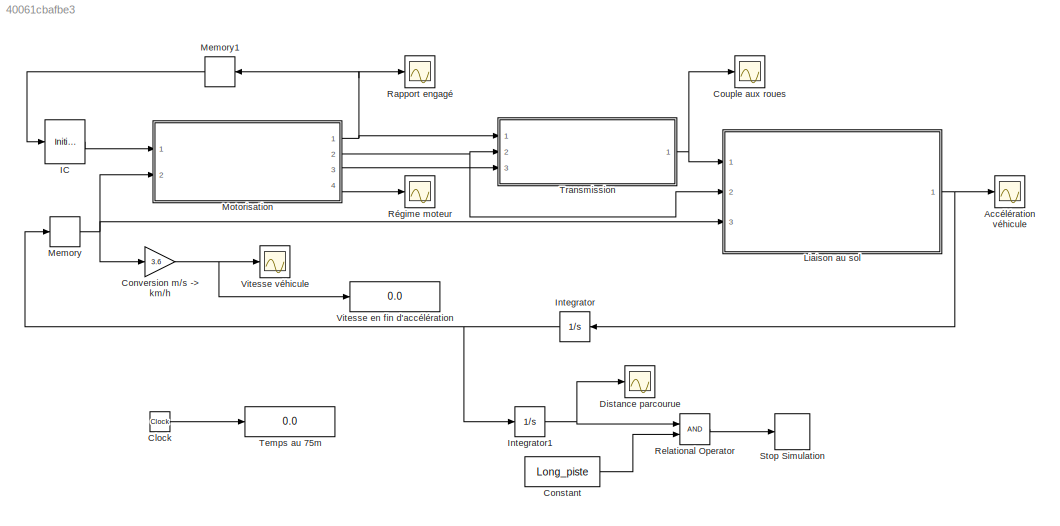
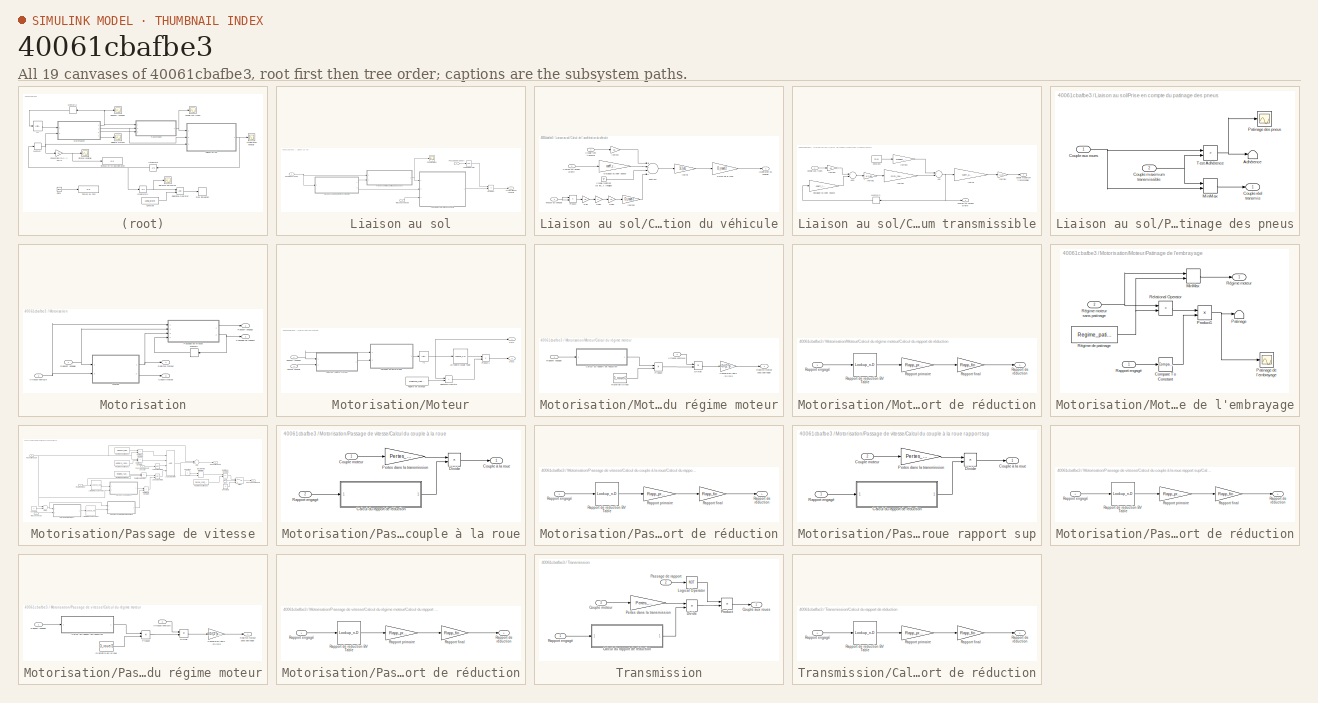
[diagram: thumbnail index - all 19 canvases of the model, root first then tree order]
MODEL slx_40061cbafbe3
KIND model
BLOCK [Scope] Accélération véhicule
  DataFormat = StructureWithTime
  Floating = off
  NumInputPorts = 1
  Ports = [1]
  SampleTime = 0
  ShowLegends = off
  ZoomMode = xonly
BLOCK [Clock] Clock
BLOCK [Constant] Constant
  Value = Long_piste
BLOCK [Gain] Conversion m//s -> km//h
  Gain = 3.6
  OutDataTypeStr = Inherit: Inherit via internal rule
  ParamDataTypeStr = Inherit: Inherit via internal rule
  SaturateOnIntegerOverflow = off
BLOCK [Scope] Couple aux roues
  DataFormat = StructureWithTime
  Floating = off
  NumInputPorts = 1
  Ports = [1]
  SampleTime = 0
  SaveName = ScopeData3
  ShowLegends = off
  TimeRange = 20
  ZoomMode = xonly
BLOCK [Scope] Distance parcourue
  DataFormat = StructureWithTime
  Floating = off
  NumInputPorts = 1
  Ports = [1]
  SampleTime = 0
  SaveName = ScopeData11
  ShowLegends = off
  TimeRange = 20
  ZoomMode = yonly
BLOCK [InitialCondition] IC
  Value = Rapport_init
BLOCK [Integrator] Integrator
  Ports = [1, 1]
BLOCK [Integrator] Integrator1
  Ports = [1, 1]
BLOCK [SubSystem] Liaison au sol
  FunctionWithSeparateData = off
  MaskHideContents = off
  MinAlgLoopOccurrences = off
  Opaque = off
  Ports = [3, 1]
  PropExecContextOutsideSubsystem = off
  RTWSystemCode = Auto
  RequestExecContextInheritance = off
BLOCK [Outport] Liaison au sol/Accélération du véhicule
  IconDisplay = Port number
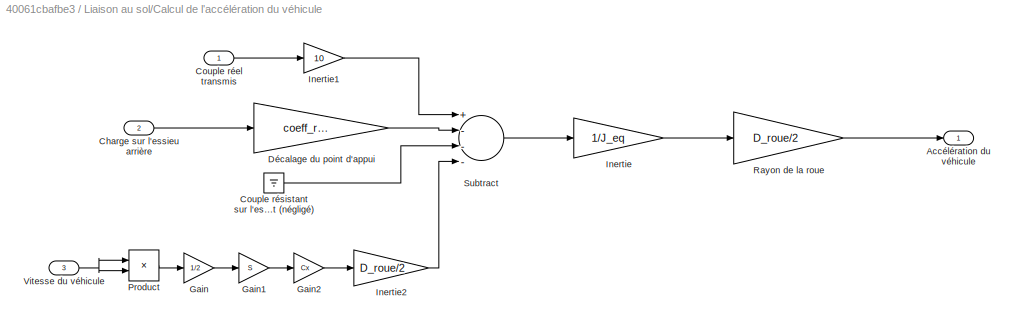
BLOCK [SubSystem] Liaison au sol/Calcul de l'accélération du véhicule
  FunctionWithSeparateData = off
  MaskHideContents = off
  MinAlgLoopOccurrences = off
  Opaque = off
  Ports = [3, 1]
  PropExecContextOutsideSubsystem = off
  RTWSystemCode = Auto
  RequestExecContextInheritance = off
BLOCK [Outport] Liaison au sol/Calcul de l'accélération du véhicule/Accélération du véhicule
  IconDisplay = Port number
BLOCK [Inport] Liaison au sol/Calcul de l'accélération du véhicule/Charge sur l'essieu arrière
  IconDisplay = Port number
  Port = 2
BLOCK [Inport] Liaison au sol/Calcul de l'accélération du véhicule/Couple réel transmis
  IconDisplay = Port number
BLOCK [Ground] Liaison au sol/Calcul de l'accélération du véhicule/Couple résistant sur l'essieu avant (négligé)
BLOCK [Gain] Liaison au sol/Calcul de l'accélération du véhicule/Décalage du point d'appui
  Gain = coeff_roul*2/D_roue
  OutDataTypeStr = Inherit: Inherit via internal rule
  ParamDataTypeStr = Inherit: Inherit via internal rule
  SaturateOnIntegerOverflow = off
BLOCK [Gain] Liaison au sol/Calcul de l'accélération du véhicule/Gain
  Gain = 1/2
  OutDataTypeStr = Inherit: Inherit via internal rule
  ParamDataTypeStr = Inherit: Inherit via internal rule
  SaturateOnIntegerOverflow = off
BLOCK [Gain] Liaison au sol/Calcul de l'accélération du véhicule/Gain1
  Gain = S
  OutDataTypeStr = Inherit: Inherit via internal rule
  ParamDataTypeStr = Inherit: Inherit via internal rule
  SaturateOnIntegerOverflow = off
BLOCK [Gain] Liaison au sol/Calcul de l'accélération du véhicule/Gain2
  Gain = Cx
  OutDataTypeStr = Inherit: Inherit via internal rule
  ParamDataTypeStr = Inherit: Inherit via internal rule
  SaturateOnIntegerOverflow = off
BLOCK [Gain] Liaison au sol/Calcul de l'accélération du véhicule/Inertie
  Gain = 1/J_eq
  OutDataTypeStr = Inherit: Inherit via internal rule
  ParamDataTypeStr = Inherit: Inherit via internal rule
  SaturateOnIntegerOverflow = off
BLOCK [Gain] Liaison au sol/Calcul de l'accélération du véhicule/Inertie1
  Gain = 10
  OutDataTypeStr = Inherit: Inherit via internal rule
  ParamDataTypeStr = Inherit: Inherit via internal rule
  SaturateOnIntegerOverflow = off
BLOCK [Gain] Liaison au sol/Calcul de l'accélération du véhicule/Inertie2
  Gain = D_roue/2
  OutDataTypeStr = Inherit: Inherit via internal rule
  ParamDataTypeStr = Inherit: Inherit via internal rule
  SaturateOnIntegerOverflow = off
BLOCK [Product] Liaison au sol/Calcul de l'accélération du véhicule/Product
  InputSameDT = off
  OutDataTypeStr = Inherit: Inherit via internal rule
  Ports = [2, 1]
  RndMeth = Floor
  SaturateOnIntegerOverflow = off
BLOCK [Gain] Liaison au sol/Calcul de l'accélération du véhicule/Rayon de la roue
  Gain = D_roue/2
  OutDataTypeStr = Inherit: Inherit via internal rule
  ParamDataTypeStr = Inherit: Inherit via internal rule
  SaturateOnIntegerOverflow = off
BLOCK [Sum] Liaison au sol/Calcul de l'accélération du véhicule/Subtract
  InputSameDT = off
  Inputs = +---
  OutDataTypeStr = Inherit: Inherit via internal rule
  Ports = [4, 1]
  SaturateOnIntegerOverflow = off
BLOCK [Inport] Liaison au sol/Calcul de l'accélération du véhicule/Vitesse du véhicule
  IconDisplay = Port number
  Port = 3
BLOCK [SubSystem] Liaison au sol/Calcul du couple maximum transmissible
  FunctionWithSeparateData = off
  MaskHideContents = off
  MinAlgLoopOccurrences = off
  Opaque = off
  Ports = [1, 2]
  PropExecContextOutsideSubsystem = off
  RTWSystemCode = Auto
  RequestExecContextInheritance = off
BLOCK [Sum] Liaison au sol/Calcul du couple maximum transmissible/Add
  InputSameDT = off
  OutDataTypeStr = Inherit: Inherit via internal rule
  Ports = [2, 1]
  SaturateOnIntegerOverflow = off
BLOCK [Sum] Liaison au sol/Calcul du couple maximum transmissible/Add1
  InputSameDT = off
  Inputs = +-
  OutDataTypeStr = Inherit: Inherit via internal rule
  Ports = [2, 1]
  SaturateOnIntegerOverflow = off
BLOCK [Outport] Liaison au sol/Calcul du couple maximum transmissible/Charge sur l'essieu arrière
  IconDisplay = Port number
  Port = 2
BLOCK [Constant] Liaison au sol/Calcul du couple maximum transmissible/Constant
  Value = m*g
BLOCK [Inport] Liaison au sol/Calcul du couple maximum transmissible/Couple aux roues
  IconDisplay = Port number
BLOCK [Outport] Liaison au sol/Calcul du couple maximum transmissible/Couple maximum transmissible
  IconDisplay = Port number
BLOCK [Gain] Liaison au sol/Calcul du couple maximum transmissible/Décalage du point d'appui
  Gain = coeff_roul*2/D_roue
  OutDataTypeStr = Inherit: Inherit via internal rule
  ParamDataTypeStr = Inherit: Inherit via internal rule
  SaturateOnIntegerOverflow = off
BLOCK [Gain] Liaison au sol/Calcul du couple maximum transmissible/Inertie
  Gain = coeff_adh*D_roue/2
  OutDataTypeStr = Inherit: Inherit via internal rule
  ParamDataTypeStr = Inherit: Inherit via internal rule
  SaturateOnIntegerOverflow = off
BLOCK [Gain] Liaison au sol/Calcul du couple maximum transmissible/Inertie1
  Gain = m*D_roue/2*z_g/Empatt
  OutDataTypeStr = Inherit: Inherit via internal rule
  ParamDataTypeStr = Inherit: Inherit via internal rule
  SaturateOnIntegerOverflow = off
BLOCK [Gain] Liaison au sol/Calcul du couple maximum transmissible/Inertie2
  Gain = 1/J_eq
  OutDataTypeStr = Inherit: Inherit via internal rule
  ParamDataTypeStr = Inherit: Inherit via internal rule
  SaturateOnIntegerOverflow = off
BLOCK [Gain] Liaison au sol/Calcul du couple maximum transmissible/Inertie3
  Gain = Repart_arriere
  OutDataTypeStr = Inherit: Inherit via internal rule
  ParamDataTypeStr = Inherit: Inherit via internal rule
  SaturateOnIntegerOverflow = off
BLOCK [Gain] Liaison au sol/Calcul du couple maximum transmissible/Inertie4
  Gain = 1/10
  OutDataTypeStr = Inherit: Inherit via internal rule
  ParamDataTypeStr = Inherit: Inherit via internal rule
  SaturateOnIntegerOverflow = off
BLOCK [Gain] Liaison au sol/Calcul du couple maximum transmissible/Inertie5
  Gain = 10
  OutDataTypeStr = Inherit: Inherit via internal rule
  ParamDataTypeStr = Inherit: Inherit via internal rule
  SaturateOnIntegerOverflow = off
BLOCK [Memory] Liaison au sol/Calcul du couple maximum transmissible/Memory1
BLOCK [Inport] Liaison au sol/Couple aux roues
  IconDisplay = Port number
BLOCK [Scope] Liaison au sol/Couple moteur
  DataFormat = StructureWithTime
  Floating = off
  NumInputPorts = 1
  Ports = [1]
  SampleTime = 0
  SaveName = ScopeData1
  ShowLegends = off
  TimeRange = 20
  ZoomMode = yonly
BLOCK [Logic] Liaison au sol/Logical Operator
  AllPortsSameDT = off
  Operator = NOT
  OutDataTypeStr = boolean
  Ports = [1, 1]
BLOCK [Inport] Liaison au sol/Passage de rapport
  IconDisplay = Port number
  Port = 2
BLOCK [SubSystem] Liaison au sol/Prise en compte du patinage des pneus
  FunctionWithSeparateData = off
  MaskHideContents = off
  MinAlgLoopOccurrences = off
  Opaque = off
  Ports = [2, 1]
  PropExecContextOutsideSubsystem = off
  RTWSystemCode = Auto
  RequestExecContextInheritance = off
BLOCK [Terminator] Liaison au sol/Prise en compte du patinage des pneus/Adhérence
BLOCK [Inport] Liaison au sol/Prise en compte du patinage des pneus/Couple aux roues
  IconDisplay = Port number
BLOCK [Inport] Liaison au sol/Prise en compte du patinage des pneus/Couple maximum transmissible
  IconDisplay = Port number
  Port = 2
BLOCK [Outport] Liaison au sol/Prise en compte du patinage des pneus/Couple réel transmis
  IconDisplay = Port number
BLOCK [MinMax] Liaison au sol/Prise en compte du patinage des pneus/MinMax
  InputSameDT = off
  Inputs = 2
  Ports = [2, 1]
  SaturateOnIntegerOverflow = off
BLOCK [Scope] Liaison au sol/Prise en compte du patinage des pneus/Patinage des pneus
  DataFormat = StructureWithTime
  Floating = off
  NumInputPorts = 1
  Ports = [1]
  SampleTime = 0
  SaveName = ScopeData4
  ShowLegends = off
  TimeRange = 20
  ZoomMode = xonly
BLOCK [RelationalOperator] Liaison au sol/Prise en compte du patinage des pneus/Test Adhérence
  InputSameDT = off
  Operator = >
  OutDataTypeStr = boolean
  Ports = [2, 1]
BLOCK [Product] Liaison au sol/Product
  InputSameDT = off
  OutDataTypeStr = Inherit: Inherit via internal rule
  Ports = [2, 1]
  RndMeth = Floor
  SaturateOnIntegerOverflow = off
BLOCK [Inport] Liaison au sol/Vitesse du véhicule
  IconDisplay = Port number
  Port = 3
BLOCK [Memory] Memory
BLOCK [Memory] Memory1
BLOCK [SubSystem] Motorisation
  FunctionWithSeparateData = off
  MaskHideContents = off
  MinAlgLoopOccurrences = off
  Opaque = off
  Ports = [2, 4]
  PropExecContextOutsideSubsystem = off
  RTWSystemCode = Auto
  RequestExecContextInheritance = off
BLOCK [Outport] Motorisation/Couple moteur
  IconDisplay = Port number
  Port = 3
BLOCK [Memory] Motorisation/Memory
BLOCK [SubSystem] Motorisation/Moteur
  FunctionWithSeparateData = off
  MaskHideContents = off
  MinAlgLoopOccurrences = off
  Opaque = off
  Ports = [2, 2]
  PropExecContextOutsideSubsystem = off
  RTWSystemCode = Auto
  RequestExecContextInheritance = off
BLOCK [SubSystem] Motorisation/Moteur/Calcul du régime moteur
  FunctionWithSeparateData = off
  MaskHideContents = off
  MinAlgLoopOccurrences = off
  Opaque = off
  Ports = [2, 1]
  PropExecContextOutsideSubsystem = off
  RTWSystemCode = Auto
  RequestExecContextInheritance = off
BLOCK [SubSystem] Motorisation/Moteur/Calcul du régime moteur/Calcul du rapport de réduction
  FunctionWithSeparateData = off
  MaskHideContents = off
  MinAlgLoopOccurrences = off
  Opaque = off
  Ports = [1, 1]
  PropExecContextOutsideSubsystem = off
  RTWSystemCode = Auto
  RequestExecContextInheritance = off
BLOCK [Lookup_n-D] Motorisation/Moteur/Calcul du régime moteur/Calcul du rapport de réduction/Rapport de reduction BV Table
  BreakpointsForDimension1 = Rapp_engage
  NumberOfTableDimensions = 1
  Ports = [1, 1]
  RndMeth = Simplest
  Table = Rapp_reduc
BLOCK [Outport] Motorisation/Moteur/Calcul du régime moteur/Calcul du rapport de réduction/Rapport de réduction
  IconDisplay = Port number
BLOCK [Inport] Motorisation/Moteur/Calcul du régime moteur/Calcul du rapport de réduction/Rapport engagé
  IconDisplay = Port number
BLOCK [Gain] Motorisation/Moteur/Calcul du régime moteur/Calcul du rapport de réduction/Rapport final
  Gain = Rapp_fin
  OutDataTypeStr = Inherit: Inherit via internal rule
  ParamDataTypeStr = Inherit: Inherit via internal rule
  SaturateOnIntegerOverflow = off
BLOCK [Gain] Motorisation/Moteur/Calcul du régime moteur/Calcul du rapport de réduction/Rapport primaire
  Gain = Rapp_prim
  OutDataTypeStr = Inherit: Inherit via internal rule
  ParamDataTypeStr = Inherit: Inherit via internal rule
  SaturateOnIntegerOverflow = off
BLOCK [Gain] Motorisation/Moteur/Calcul du régime moteur/Conversion rad//s ->tr//min
  Gain = 60/(2*pi)
  OutDataTypeStr = Inherit: Inherit via internal rule
  ParamDataTypeStr = Inherit: Inherit via internal rule
  SaturateOnIntegerOverflow = off
BLOCK [Product] Motorisation/Moteur/Calcul du régime moteur/Divide
  InputSameDT = off
  Inputs = */
  OutDataTypeStr = Inherit: Inherit via internal rule
  Ports = [2, 1]
  RndMeth = Floor
  SaturateOnIntegerOverflow = off
BLOCK [Product] Motorisation/Moteur/Calcul du régime moteur/Product
  InputSameDT = off
  OutDataTypeStr = Inherit: Inherit via internal rule
  Ports = [2, 1]
  RndMeth = Floor
  SaturateOnIntegerOverflow = off
BLOCK [Inport] Motorisation/Moteur/Calcul du régime moteur/Rapport engagé
  IconDisplay = Port number
BLOCK [Constant] Motorisation/Moteur/Calcul du régime moteur/Rayon de la roue
  Value = D_roue/2
BLOCK [Outport] Motorisation/Moteur/Calcul du régime moteur/Régime moteur sans patinage
  IconDisplay = Port number
BLOCK [Inport] Motorisation/Moteur/Calcul du régime moteur/Vitesse véhicule
  IconDisplay = Port number
  Port = 2
BLOCK [InitialCondition] Motorisation/Moteur/IC
  Value = Regime_init
BLOCK [Lookup_n-D] Motorisation/Moteur/Loi regime//couple Table
  BreakpointsForDimension1 = Regime_moteur
  NumberOfTableDimensions = 1
  Ports = [1, 1]
  RndMeth = Simplest
  Table = Couple_moteur
BLOCK [Outport] Motorisation/Moteur/Out1
  IconDisplay = Port number
BLOCK [Outport] Motorisation/Moteur/Out2
  IconDisplay = Port number
  Port = 2
BLOCK [SubSystem] Motorisation/Moteur/Patinage de l'embrayage
  FunctionWithSeparateData = off
  MaskHideContents = off
  MinAlgLoopOccurrences = off
  Opaque = off
  Ports = [2, 1]
  PropExecContextOutsideSubsystem = off
  RTWSystemCode = Auto
  RequestExecContextInheritance = off
BLOCK [Reference] Motorisation/Moteur/Patinage de l'embrayage/Compare To Constant  REF=simulink/Logic and Bit
Operations/Compare
To Constant
  OutDataTypeStr = boolean
  Ports = [1, 1]
  SourceBlock = simulink/Logic and Bit\nOperations/Compare\nTo Constant
  SourceType = Compare To Constant
  ZeroCross = on
  const = 1
  relop = ==
BLOCK [MinMax] Motorisation/Moteur/Patinage de l'embrayage/MinMax
  Function = max
  InputSameDT = off
  Inputs = 2
  Ports = [2, 1]
  SaturateOnIntegerOverflow = off
BLOCK [Terminator] Motorisation/Moteur/Patinage de l'embrayage/Patinage
BLOCK [Scope] Motorisation/Moteur/Patinage de l'embrayage/Patinage de l'embrayage
  DataFormat = StructureWithTime
  Floating = off
  NumInputPorts = 1
  Ports = [1]
  SampleTime = 0
  SaveName = ScopeData5
  ShowLegends = off
  ZoomMode = xonly
BLOCK [Product] Motorisation/Moteur/Patinage de l'embrayage/Product1
  InputSameDT = off
  OutDataTypeStr = Inherit: Inherit via internal rule
  Ports = [2, 1]
  RndMeth = Floor
  SaturateOnIntegerOverflow = off
BLOCK [Inport] Motorisation/Moteur/Patinage de l'embrayage/Rapport engagé
  IconDisplay = Port number
BLOCK [RelationalOperator] Motorisation/Moteur/Patinage de l'embrayage/Relational Operator
  InputSameDT = off
  Operator = <
  OutDataTypeStr = boolean
  Ports = [2, 1]
BLOCK [Constant] Motorisation/Moteur/Patinage de l'embrayage/Régime de patinage
  Value = Regime_patinage
BLOCK [Outport] Motorisation/Moteur/Patinage de l'embrayage/Régime moteur
  IconDisplay = Port number
BLOCK [Inport] Motorisation/Moteur/Patinage de l'embrayage/Régime moteur sans patinage
  IconDisplay = Port number
  Port = 2
BLOCK [Product] Motorisation/Moteur/Product1
  InputSameDT = off
  OutDataTypeStr = Inherit: Inherit via internal rule
  Ports = [2, 1]
  RndMeth = Floor
  SaturateOnIntegerOverflow = off
BLOCK [Inport] Motorisation/Moteur/Rapport engagé
  IconDisplay = Port number
BLOCK [RelationalOperator] Motorisation/Moteur/Relational Operator
  InputSameDT = off
  Operator = <
  OutDataTypeStr = boolean
  Ports = [2, 1]
BLOCK [Constant] Motorisation/Moteur/Régime de patinage
  Value = Regime_rupteur
BLOCK [Inport] Motorisation/Moteur/Vitesse véhicule
  IconDisplay = Port number
  Port = 2
BLOCK [Outport] Motorisation/Passage de rapport
  IconDisplay = Port number
  Port = 2
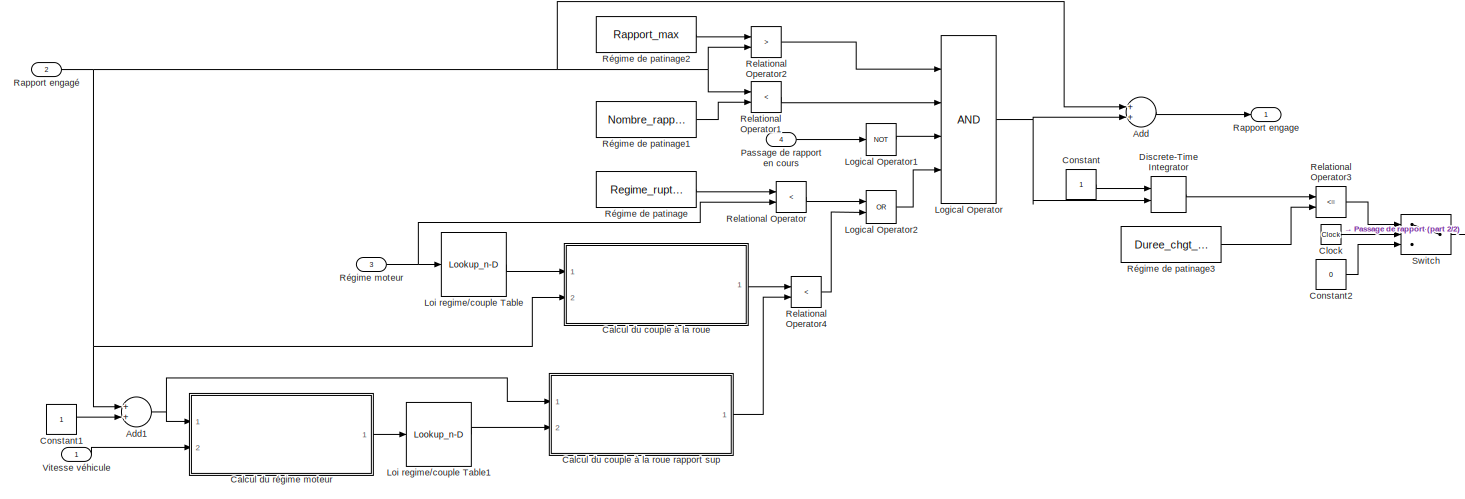
[diagram: Motorisation/Passage de vitesse - part 1/2, most of the canvas]
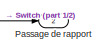
[diagram: Motorisation/Passage de vitesse - part 2/2, middle right region]
BLOCK [SubSystem] Motorisation/Passage de vitesse
  FunctionWithSeparateData = off
  MaskHideContents = off
  MinAlgLoopOccurrences = off
  Opaque = off
  Ports = [4, 2]
  PropExecContextOutsideSubsystem = off
  RTWSystemCode = Auto
  RequestExecContextInheritance = off
BLOCK [Sum] Motorisation/Passage de vitesse/Add
  InputSameDT = off
  OutDataTypeStr = Inherit: Inherit via internal rule
  Ports = [2, 1]
  SaturateOnIntegerOverflow = off
BLOCK [Sum] Motorisation/Passage de vitesse/Add1
  InputSameDT = off
  OutDataTypeStr = Inherit: Inherit via internal rule
  Ports = [2, 1]
  SaturateOnIntegerOverflow = off
BLOCK [SubSystem] Motorisation/Passage de vitesse/Calcul du couple à la roue
  FunctionWithSeparateData = off
  MaskHideContents = off
  MinAlgLoopOccurrences = off
  Opaque = off
  Ports = [2, 1]
  PropExecContextOutsideSubsystem = off
  RTWSystemCode = Auto
  RequestExecContextInheritance = off
BLOCK [SubSystem] Motorisation/Passage de vitesse/Calcul du couple à la roue rapport sup
  FunctionWithSeparateData = off
  MaskHideContents = off
  MinAlgLoopOccurrences = off
  Opaque = off
  Ports = [2, 1]
  PropExecContextOutsideSubsystem = off
  RTWSystemCode = Auto
  RequestExecContextInheritance = off
BLOCK [SubSystem] Motorisation/Passage de vitesse/Calcul du couple à la roue rapport sup/Calcul du rapport de réduction
  FunctionWithSeparateData = off
  MaskHideContents = off
  MinAlgLoopOccurrences = off
  Opaque = off
  Ports = [1, 1]
  PropExecContextOutsideSubsystem = off
  RTWSystemCode = Auto
  RequestExecContextInheritance = off
BLOCK [Lookup_n-D] Motorisation/Passage de vitesse/Calcul du couple à la roue rapport sup/Calcul du rapport de réduction/Rapport de reduction BV Table
  BreakpointsForDimension1 = Rapp_engage
  NumberOfTableDimensions = 1
  Ports = [1, 1]
  RndMeth = Simplest
  Table = Rapp_reduc
BLOCK [Outport] Motorisation/Passage de vitesse/Calcul du couple à la roue rapport sup/Calcul du rapport de réduction/Rapport de réduction
  IconDisplay = Port number
BLOCK [Inport] Motorisation/Passage de vitesse/Calcul du couple à la roue rapport sup/Calcul du rapport de réduction/Rapport engagé
  IconDisplay = Port number
BLOCK [Gain] Motorisation/Passage de vitesse/Calcul du couple à la roue rapport sup/Calcul du rapport de réduction/Rapport final
  Gain = Rapp_fin
  OutDataTypeStr = Inherit: Inherit via internal rule
  ParamDataTypeStr = Inherit: Inherit via internal rule
  SaturateOnIntegerOverflow = off
BLOCK [Gain] Motorisation/Passage de vitesse/Calcul du couple à la roue rapport sup/Calcul du rapport de réduction/Rapport primaire
  Gain = Rapp_prim
  OutDataTypeStr = Inherit: Inherit via internal rule
  ParamDataTypeStr = Inherit: Inherit via internal rule
  SaturateOnIntegerOverflow = off
BLOCK [Inport] Motorisation/Passage de vitesse/Calcul du couple à la roue rapport sup/Couple moteur
  IconDisplay = Port number
  Port = 2
BLOCK [Outport] Motorisation/Passage de vitesse/Calcul du couple à la roue rapport sup/Couple à la roue
  IconDisplay = Port number
BLOCK [Product] Motorisation/Passage de vitesse/Calcul du couple à la roue rapport sup/Divide
  InputSameDT = off
  Inputs = */
  OutDataTypeStr = Inherit: Inherit via internal rule
  Ports = [2, 1]
  RndMeth = Floor
  SaturateOnIntegerOverflow = off
BLOCK [Gain] Motorisation/Passage de vitesse/Calcul du couple à la roue rapport sup/Pertes dans la transmission
  Gain = Pertes_trans
  OutDataTypeStr = Inherit: Inherit via internal rule
  ParamDataTypeStr = Inherit: Inherit via internal rule
  SaturateOnIntegerOverflow = off
BLOCK [Inport] Motorisation/Passage de vitesse/Calcul du couple à la roue rapport sup/Rapport engagé
  IconDisplay = Port number
BLOCK [SubSystem] Motorisation/Passage de vitesse/Calcul du couple à la roue/Calcul du rapport de réduction
  FunctionWithSeparateData = off
  MaskHideContents = off
  MinAlgLoopOccurrences = off
  Opaque = off
  Ports = [1, 1]
  PropExecContextOutsideSubsystem = off
  RTWSystemCode = Auto
  RequestExecContextInheritance = off
BLOCK [Lookup_n-D] Motorisation/Passage de vitesse/Calcul du couple à la roue/Calcul du rapport de réduction/Rapport de reduction BV Table
  BreakpointsForDimension1 = Rapp_engage
  NumberOfTableDimensions = 1
  Ports = [1, 1]
  RndMeth = Simplest
  Table = Rapp_reduc
BLOCK [Outport] Motorisation/Passage de vitesse/Calcul du couple à la roue/Calcul du rapport de réduction/Rapport de réduction
  IconDisplay = Port number
BLOCK [Inport] Motorisation/Passage de vitesse/Calcul du couple à la roue/Calcul du rapport de réduction/Rapport engagé
  IconDisplay = Port number
BLOCK [Gain] Motorisation/Passage de vitesse/Calcul du couple à la roue/Calcul du rapport de réduction/Rapport final
  Gain = Rapp_fin
  OutDataTypeStr = Inherit: Inherit via internal rule
  ParamDataTypeStr = Inherit: Inherit via internal rule
  SaturateOnIntegerOverflow = off
BLOCK [Gain] Motorisation/Passage de vitesse/Calcul du couple à la roue/Calcul du rapport de réduction/Rapport primaire
  Gain = Rapp_prim
  OutDataTypeStr = Inherit: Inherit via internal rule
  ParamDataTypeStr = Inherit: Inherit via internal rule
  SaturateOnIntegerOverflow = off
BLOCK [Inport] Motorisation/Passage de vitesse/Calcul du couple à la roue/Couple moteur
  IconDisplay = Port number
BLOCK [Outport] Motorisation/Passage de vitesse/Calcul du couple à la roue/Couple à la roue
  IconDisplay = Port number
BLOCK [Product] Motorisation/Passage de vitesse/Calcul du couple à la roue/Divide
  InputSameDT = off
  Inputs = */
  OutDataTypeStr = Inherit: Inherit via internal rule
  Ports = [2, 1]
  RndMeth = Floor
  SaturateOnIntegerOverflow = off
BLOCK [Gain] Motorisation/Passage de vitesse/Calcul du couple à la roue/Pertes dans la transmission
  Gain = Pertes_trans
  OutDataTypeStr = Inherit: Inherit via internal rule
  ParamDataTypeStr = Inherit: Inherit via internal rule
  SaturateOnIntegerOverflow = off
BLOCK [Inport] Motorisation/Passage de vitesse/Calcul du couple à la roue/Rapport engagé
  IconDisplay = Port number
  Port = 2
BLOCK [SubSystem] Motorisation/Passage de vitesse/Calcul du régime moteur
  FunctionWithSeparateData = off
  MaskHideContents = off
  MinAlgLoopOccurrences = off
  Opaque = off
  Ports = [2, 1]
  PropExecContextOutsideSubsystem = off
  RTWSystemCode = Auto
  RequestExecContextInheritance = off
BLOCK [SubSystem] Motorisation/Passage de vitesse/Calcul du régime moteur/Calcul du rapport de réduction
  FunctionWithSeparateData = off
  MaskHideContents = off
  MinAlgLoopOccurrences = off
  Opaque = off
  Ports = [1, 1]
  PropExecContextOutsideSubsystem = off
  RTWSystemCode = Auto
  RequestExecContextInheritance = off
BLOCK [Lookup_n-D] Motorisation/Passage de vitesse/Calcul du régime moteur/Calcul du rapport de réduction/Rapport de reduction BV Table
  BreakpointsForDimension1 = Rapp_engage
  NumberOfTableDimensions = 1
  Ports = [1, 1]
  RndMeth = Simplest
  Table = Rapp_reduc
BLOCK [Outport] Motorisation/Passage de vitesse/Calcul du régime moteur/Calcul du rapport de réduction/Rapport de réduction
  IconDisplay = Port number
BLOCK [Inport] Motorisation/Passage de vitesse/Calcul du régime moteur/Calcul du rapport de réduction/Rapport engagé
  IconDisplay = Port number
BLOCK [Gain] Motorisation/Passage de vitesse/Calcul du régime moteur/Calcul du rapport de réduction/Rapport final
  Gain = Rapp_fin
  OutDataTypeStr = Inherit: Inherit via internal rule
  ParamDataTypeStr = Inherit: Inherit via internal rule
  SaturateOnIntegerOverflow = off
BLOCK [Gain] Motorisation/Passage de vitesse/Calcul du régime moteur/Calcul du rapport de réduction/Rapport primaire
  Gain = Rapp_prim
  OutDataTypeStr = Inherit: Inherit via internal rule
  ParamDataTypeStr = Inherit: Inherit via internal rule
  SaturateOnIntegerOverflow = off
BLOCK [Gain] Motorisation/Passage de vitesse/Calcul du régime moteur/Conversion rad//s ->tr//min
  Gain = 60/(2*pi)
  OutDataTypeStr = Inherit: Inherit via internal rule
  ParamDataTypeStr = Inherit: Inherit via internal rule
  SaturateOnIntegerOverflow = off
BLOCK [Constant] Motorisation/Passage de vitesse/Calcul du régime moteur/Diamètre de la roue
  Value = D_roue/2
BLOCK [Product] Motorisation/Passage de vitesse/Calcul du régime moteur/Divide
  InputSameDT = off
  Inputs = */
  OutDataTypeStr = Inherit: Inherit via internal rule
  Ports = [2, 1]
  RndMeth = Floor
  SaturateOnIntegerOverflow = off
BLOCK [Product] Motorisation/Passage de vitesse/Calcul du régime moteur/Product
  InputSameDT = off
  OutDataTypeStr = Inherit: Inherit via internal rule
  Ports = [2, 1]
  RndMeth = Floor
  SaturateOnIntegerOverflow = off
BLOCK [Inport] Motorisation/Passage de vitesse/Calcul du régime moteur/Rapport engagé
  IconDisplay = Port number
BLOCK [Outport] Motorisation/Passage de vitesse/Calcul du régime moteur/Régime moteur sans patinage
  IconDisplay = Port number
BLOCK [Inport] Motorisation/Passage de vitesse/Calcul du régime moteur/Vitesse véhicule
  IconDisplay = Port number
  Port = 2
BLOCK [Clock] Motorisation/Passage de vitesse/Clock
BLOCK [Constant] Motorisation/Passage de vitesse/Constant
BLOCK [Constant] Motorisation/Passage de vitesse/Constant1
BLOCK [Constant] Motorisation/Passage de vitesse/Constant2
  Value = 0
BLOCK [DiscreteIntegrator] Motorisation/Passage de vitesse/Discrete-Time Integrator
  ExternalReset = rising
  ICPrevOutput = DiscIntNeverNeededParam
  ICPrevScaledInput = DiscIntNeverNeededParam
  Ports = [2, 1]
  SampleTime = -1
BLOCK [Logic] Motorisation/Passage de vitesse/Logical Operator
  AllPortsSameDT = off
  Inputs = 4
  OutDataTypeStr = boolean
  Ports = [4, 1]
BLOCK [Logic] Motorisation/Passage de vitesse/Logical Operator1
  AllPortsSameDT = off
  Operator = NOT
  OutDataTypeStr = boolean
  Ports = [1, 1]
BLOCK [Logic] Motorisation/Passage de vitesse/Logical Operator2
  AllPortsSameDT = off
  Operator = OR
  OutDataTypeStr = boolean
  Ports = [2, 1]
BLOCK [Lookup_n-D] Motorisation/Passage de vitesse/Loi regime//couple Table
  BreakpointsForDimension1 = Regime_moteur
  NumberOfTableDimensions = 1
  Ports = [1, 1]
  RndMeth = Simplest
  Table = Couple_moteur
BLOCK [Lookup_n-D] Motorisation/Passage de vitesse/Loi regime//couple Table1
  BreakpointsForDimension1 = Regime_moteur
  NumberOfTableDimensions = 1
  Ports = [1, 1]
  RndMeth = Simplest
  Table = Couple_moteur
BLOCK [Outport] Motorisation/Passage de vitesse/Passage de rapport
  IconDisplay = Port number
  Port = 2
BLOCK [Inport] Motorisation/Passage de vitesse/Passage de rapport en cours
  IconDisplay = Port number
  Port = 4
BLOCK [Outport] Motorisation/Passage de vitesse/Rapport engage
  IconDisplay = Port number
BLOCK [Inport] Motorisation/Passage de vitesse/Rapport engagé
  IconDisplay = Port number
  Port = 2
BLOCK [RelationalOperator] Motorisation/Passage de vitesse/Relational Operator
  InputSameDT = off
  Operator = <
  OutDataTypeStr = boolean
  Ports = [2, 1]
BLOCK [RelationalOperator] Motorisation/Passage de vitesse/Relational Operator1
  InputSameDT = off
  Operator = <
  OutDataTypeStr = boolean
  Ports = [2, 1]
BLOCK [RelationalOperator] Motorisation/Passage de vitesse/Relational Operator2
  InputSameDT = off
  Operator = >
  OutDataTypeStr = boolean
  Ports = [2, 1]
BLOCK [RelationalOperator] Motorisation/Passage de vitesse/Relational Operator3
  InputSameDT = off
  Operator = <=
  OutDataTypeStr = boolean
  Ports = [2, 1]
BLOCK [RelationalOperator] Motorisation/Passage de vitesse/Relational Operator4
  InputSameDT = off
  Operator = <
  OutDataTypeStr = boolean
  Ports = [2, 1]
BLOCK [Constant] Motorisation/Passage de vitesse/Régime de patinage
  Value = Regime_rupteur
BLOCK [Constant] Motorisation/Passage de vitesse/Régime de patinage1
  Value = Nombre_rapport
BLOCK [Constant] Motorisation/Passage de vitesse/Régime de patinage2
  Value = Rapport_max
BLOCK [Constant] Motorisation/Passage de vitesse/Régime de patinage3
  Value = Duree_chgt_rapport
BLOCK [Inport] Motorisation/Passage de vitesse/Régime moteur
  IconDisplay = Port number
  Port = 3
BLOCK [Switch] Motorisation/Passage de vitesse/Switch
  InputSameDT = off
  SaturateOnIntegerOverflow = off
  Threshold = 0.2
BLOCK [Inport] Motorisation/Passage de vitesse/Vitesse véhicule
  IconDisplay = Port number
BLOCK [Outport] Motorisation/Rapport engage
  IconDisplay = Port number
BLOCK [Inport] Motorisation/Rapport engagé
  IconDisplay = Port number
BLOCK [Outport] Motorisation/Régime moteur
  IconDisplay = Port number
  Port = 4
BLOCK [Inport] Motorisation/Vitesse véhicule
  IconDisplay = Port number
  Port = 2
BLOCK [Scope] Rapport engagé
  DataFormat = StructureWithTime
  Floating = off
  NumInputPorts = 1
  Ports = [1]
  SampleTime = 0
  SaveName = ScopeData6
  ShowLegends = off
  ZoomMode = xonly
BLOCK [RelationalOperator] Relational Operator
  InputSameDT = off
  OutDataTypeStr = boolean
  Ports = [2, 1]
BLOCK [Scope] Régime moteur
  DataFormat = StructureWithTime
  Floating = off
  NumInputPorts = 1
  Ports = [1]
  SampleTime = 0
  SaveName = ScopeData9
  ShowLegends = off
  TimeRange = 20
  ZoomMode = yonly
BLOCK [Stop] Stop Simulation
BLOCK [Display] Temps au 75m
  Decimation = 1
  Lockdown = off
  Ports = [1]
BLOCK [SubSystem] Transmission
  FunctionWithSeparateData = off
  MaskHideContents = off
  MinAlgLoopOccurrences = off
  Opaque = off
  Ports = [3, 1]
  PropExecContextOutsideSubsystem = off
  RTWSystemCode = Auto
  RequestExecContextInheritance = off
BLOCK [SubSystem] Transmission/Calcul du rapport de réduction
  FunctionWithSeparateData = off
  MaskHideContents = off
  MinAlgLoopOccurrences = off
  Opaque = off
  Ports = [1, 1]
  PropExecContextOutsideSubsystem = off
  RTWSystemCode = Auto
  RequestExecContextInheritance = off
BLOCK [Lookup_n-D] Transmission/Calcul du rapport de réduction/Rapport de reduction BV Table
  BreakpointsForDimension1 = Rapp_engage
  NumberOfTableDimensions = 1
  Ports = [1, 1]
  RndMeth = Simplest
  Table = Rapp_reduc
BLOCK [Outport] Transmission/Calcul du rapport de réduction/Rapport de réduction
  IconDisplay = Port number
BLOCK [Inport] Transmission/Calcul du rapport de réduction/Rapport engagé
  IconDisplay = Port number
BLOCK [Gain] Transmission/Calcul du rapport de réduction/Rapport final
  Gain = Rapp_fin
  OutDataTypeStr = Inherit: Inherit via internal rule
  ParamDataTypeStr = Inherit: Inherit via internal rule
  SaturateOnIntegerOverflow = off
BLOCK [Gain] Transmission/Calcul du rapport de réduction/Rapport primaire
  Gain = Rapp_prim
  OutDataTypeStr = Inherit: Inherit via internal rule
  ParamDataTypeStr = Inherit: Inherit via internal rule
  SaturateOnIntegerOverflow = off
BLOCK [Outport] Transmission/Couple aux roues
  IconDisplay = Port number
BLOCK [Inport] Transmission/Couple moteur
  IconDisplay = Port number
  Port = 3
BLOCK [Product] Transmission/Divide
  InputSameDT = off
  Inputs = */
  OutDataTypeStr = Inherit: Inherit via internal rule
  Ports = [2, 1]
  RndMeth = Floor
  SaturateOnIntegerOverflow = off
BLOCK [Logic] Transmission/Logical Operator
  AllPortsSameDT = off
  Operator = NOT
  OutDataTypeStr = boolean
  Ports = [1, 1]
BLOCK [Inport] Transmission/Passage de rapport
  IconDisplay = Port number
  Port = 2
BLOCK [Gain] Transmission/Pertes dans la transmission
  Gain = Pertes_trans
  OutDataTypeStr = Inherit: Inherit via internal rule
  ParamDataTypeStr = Inherit: Inherit via internal rule
  SaturateOnIntegerOverflow = off
BLOCK [Product] Transmission/Product
  InputSameDT = off
  OutDataTypeStr = Inherit: Inherit via internal rule
  Ports = [2, 1]
  RndMeth = Floor
  SaturateOnIntegerOverflow = off
BLOCK [Inport] Transmission/Rapport engagé
  IconDisplay = Port number
BLOCK [Display] Vitesse en fin d'accélération
  Decimation = 1
  Lockdown = off
  Ports = [1]
BLOCK [Scope] Vitesse véhicule
  DataFormat = StructureWithTime
  Floating = off
  NumInputPorts = 1
  Ports = [1]
  SampleTime = 0
  SaveName = ScopeData2
  ShowLegends = off
  TimeRange = 20
  ZoomMode = xonly
LINE Clock:1 -> Temps au 75m:1
LINE Constant:1 -> Relational Operator:2
NET Conversion m//s -> km//h:1 -> Vitesse en fin d'accélération:1, Vitesse véhicule:1
LINE IC:1 -> Motorisation:1
NET Integrator1:1 -> Distance parcourue:1, Relational Operator:1
NET Integrator:1 -> Integrator1:1, Memory:1
LINE Liaison au sol/Calcul de l'accélération du véhicule/Charge sur l'essieu arrière:1 -> Liaison au sol/Calcul de l'accélération du véhicule/Décalage du point d'appui:1
LINE Liaison au sol/Calcul de l'accélération du véhicule/Couple réel transmis:1 -> Liaison au sol/Calcul de l'accélération du véhicule/Inertie1:1
LINE Liaison au sol/Calcul de l'accélération du véhicule/Couple résistant sur l'essieu avant (négligé):1 -> Liaison au sol/Calcul de l'accélération du véhicule/Subtract:3
LINE Liaison au sol/Calcul de l'accélération du véhicule/Décalage du point d'appui:1 -> Liaison au sol/Calcul de l'accélération du véhicule/Subtract:2
LINE Liaison au sol/Calcul de l'accélération du véhicule/Gain1:1 -> Liaison au sol/Calcul de l'accélération du véhicule/Gain2:1
LINE Liaison au sol/Calcul de l'accélération du véhicule/Gain2:1 -> Liaison au sol/Calcul de l'accélération du véhicule/Inertie2:1
LINE Liaison au sol/Calcul de l'accélération du véhicule/Gain:1 -> Liaison au sol/Calcul de l'accélération du véhicule/Gain1:1
LINE Liaison au sol/Calcul de l'accélération du véhicule/Inertie1:1 -> Liaison au sol/Calcul de l'accélération du véhicule/Subtract:1
LINE Liaison au sol/Calcul de l'accélération du véhicule/Inertie2:1 -> Liaison au sol/Calcul de l'accélération du véhicule/Subtract:4
LINE Liaison au sol/Calcul de l'accélération du véhicule/Inertie:1 -> Liaison au sol/Calcul de l'accélération du véhicule/Rayon de la roue:1
LINE Liaison au sol/Calcul de l'accélération du véhicule/Product:1 -> Liaison au sol/Calcul de l'accélération du véhicule/Gain:1
LINE Liaison au sol/Calcul de l'accélération du véhicule/Rayon de la roue:1 -> Liaison au sol/Calcul de l'accélération du véhicule/Accélération du véhicule:1
LINE Liaison au sol/Calcul de l'accélération du véhicule/Subtract:1 -> Liaison au sol/Calcul de l'accélération du véhicule/Inertie:1
NET Liaison au sol/Calcul de l'accélération du véhicule/Vitesse du véhicule:1 -> Liaison au sol/Calcul de l'accélération du véhicule/Product:1, Liaison au sol/Calcul de l'accélération du véhicule/Product:2
LINE Liaison au sol/Calcul de l'accélération du véhicule:1 -> Liaison au sol/Product:2
LINE Liaison au sol/Calcul du couple maximum transmissible/Add1:1 -> Liaison au sol/Calcul du couple maximum transmissible/Inertie2:1
NET Liaison au sol/Calcul du couple maximum transmissible/Add:1 -> Liaison au sol/Calcul du couple maximum transmissible/Charge sur l'essieu arrière:1, Liaison au sol/Calcul du couple maximum transmissible/Inertie:1, Liaison au sol/Calcul du couple maximum transmissible/Memory1:1
LINE Liaison au sol/Calcul du couple maximum transmissible/Constant:1 -> Liaison au sol/Calcul du couple maximum transmissible/Inertie3:1
LINE Liaison au sol/Calcul du couple maximum transmissible/Couple aux roues:1 -> Liaison au sol/Calcul du couple maximum transmissible/Inertie5:1
LINE Liaison au sol/Calcul du couple maximum transmissible/Décalage du point d'appui:1 -> Liaison au sol/Calcul du couple maximum transmissible/Add1:2
LINE Liaison au sol/Calcul du couple maximum transmissible/Inertie1:1 -> Liaison au sol/Calcul du couple maximum transmissible/Add:2
LINE Liaison au sol/Calcul du couple maximum transmissible/Inertie2:1 -> Liaison au sol/Calcul du couple maximum transmissible/Inertie1:1
LINE Liaison au sol/Calcul du couple maximum transmissible/Inertie3:1 -> Liaison au sol/Calcul du couple maximum transmissible/Add:1
LINE Liaison au sol/Calcul du couple maximum transmissible/Inertie4:1 -> Liaison au sol/Calcul du couple maximum transmissible/Couple maximum transmissible:1
LINE Liaison au sol/Calcul du couple maximum transmissible/Inertie5:1 -> Liaison au sol/Calcul du couple maximum transmissible/Add1:1
LINE Liaison au sol/Calcul du couple maximum transmissible/Inertie:1 -> Liaison au sol/Calcul du couple maximum transmissible/Inertie4:1
LINE Liaison au sol/Calcul du couple maximum transmissible/Memory1:1 -> Liaison au sol/Calcul du couple maximum transmissible/Décalage du point d'appui:1
LINE Liaison au sol/Calcul du couple maximum transmissible:1 -> Liaison au sol/Prise en compte du patinage des pneus:2
LINE Liaison au sol/Calcul du couple maximum transmissible:2 -> Liaison au sol/Calcul de l'accélération du véhicule:2
NET Liaison au sol/Couple aux roues:1 -> Liaison au sol/Calcul du couple maximum transmissible:1, Liaison au sol/Prise en compte du patinage des pneus:1
LINE Liaison au sol/Logical Operator:1 -> Liaison au sol/Product:1
LINE Liaison au sol/Passage de rapport:1 -> Liaison au sol/Logical Operator:1
NET Liaison au sol/Prise en compte du patinage des pneus/Couple aux roues:1 -> Liaison au sol/Prise en compte du patinage des pneus/MinMax:2, Liaison au sol/Prise en compte du patinage des pneus/Test Adhérence:1
NET Liaison au sol/Prise en compte du patinage des pneus/Couple maximum transmissible:1 -> Liaison au sol/Prise en compte du patinage des pneus/MinMax:1, Liaison au sol/Prise en compte du patinage des pneus/Test Adhérence:2
LINE Liaison au sol/Prise en compte du patinage des pneus/MinMax:1 -> Liaison au sol/Prise en compte du patinage des pneus/Couple réel transmis:1
NET Liaison au sol/Prise en compte du patinage des pneus/Test Adhérence:1 -> Liaison au sol/Prise en compte du patinage des pneus/Adhérence:1, Liaison au sol/Prise en compte du patinage des pneus/Patinage des pneus:1
NET Liaison au sol/Prise en compte du patinage des pneus:1 -> Liaison au sol/Calcul de l'accélération du véhicule:1, Liaison au sol/Couple moteur:1
LINE Liaison au sol/Product:1 -> Liaison au sol/Accélération du véhicule:1
LINE Liaison au sol/Vitesse du véhicule:1 -> Liaison au sol/Calcul de l'accélération du véhicule:3
NET Liaison au sol:1 -> Accélération véhicule:1, Integrator:1
LINE Memory1:1 -> IC:1
NET Memory:1 -> Conversion m//s -> km//h:1, Liaison au sol:3, Motorisation:2
LINE Motorisation/Memory:1 -> Motorisation/Passage de vitesse:4
LINE Motorisation/Moteur/Calcul du régime moteur/Calcul du rapport de réduction/Rapport de reduction BV Table:1 -> Motorisation/Moteur/Calcul du régime moteur/Calcul du rapport de réduction/Rapport primaire:1
LINE Motorisation/Moteur/Calcul du régime moteur/Calcul du rapport de réduction/Rapport engagé:1 -> Motorisation/Moteur/Calcul du régime moteur/Calcul du rapport de réduction/Rapport de reduction BV Table:1
LINE Motorisation/Moteur/Calcul du régime moteur/Calcul du rapport de réduction/Rapport final:1 -> Motorisation/Moteur/Calcul du régime moteur/Calcul du rapport de réduction/Rapport de réduction:1
LINE Motorisation/Moteur/Calcul du régime moteur/Calcul du rapport de réduction/Rapport primaire:1 -> Motorisation/Moteur/Calcul du régime moteur/Calcul du rapport de réduction/Rapport final:1
LINE Motorisation/Moteur/Calcul du régime moteur/Calcul du rapport de réduction:1 -> Motorisation/Moteur/Calcul du régime moteur/Product:1
LINE Motorisation/Moteur/Calcul du régime moteur/Conversion rad//s ->tr//min:1 -> Motorisation/Moteur/Calcul du régime moteur/Régime moteur sans patinage:1
LINE Motorisation/Moteur/Calcul du régime moteur/Divide:1 -> Motorisation/Moteur/Calcul du régime moteur/Conversion rad//s ->tr//min:1
LINE Motorisation/Moteur/Calcul du régime moteur/Product:1 -> Motorisation/Moteur/Calcul du régime moteur/Divide:2
LINE Motorisation/Moteur/Calcul du régime moteur/Rapport engagé:1 -> Motorisation/Moteur/Calcul du régime moteur/Calcul du rapport de réduction:1
LINE Motorisation/Moteur/Calcul du régime moteur/Rayon de la roue:1 -> Motorisation/Moteur/Calcul du régime moteur/Product:2
LINE Motorisation/Moteur/Calcul du régime moteur/Vitesse véhicule:1 -> Motorisation/Moteur/Calcul du régime moteur/Divide:1
LINE Motorisation/Moteur/Calcul du régime moteur:1 -> Motorisation/Moteur/Patinage de l'embrayage:2
NET Motorisation/Moteur/IC:1 -> Motorisation/Moteur/Loi regime//couple Table:1, Motorisation/Moteur/Out1:1, Motorisation/Moteur/Relational Operator:1
LINE Motorisation/Moteur/Loi regime//couple Table:1 -> Motorisation/Moteur/Product1:1
LINE Motorisation/Moteur/Patinage de l'embrayage/Compare To Constant:1 -> Motorisation/Moteur/Patinage de l'embrayage/Product1:2
LINE Motorisation/Moteur/Patinage de l'embrayage/MinMax:1 -> Motorisation/Moteur/Patinage de l'embrayage/Régime moteur:1
NET Motorisation/Moteur/Patinage de l'embrayage/Product1:1 -> Motorisation/Moteur/Patinage de l'embrayage/Patinage de l'embrayage:1, Motorisation/Moteur/Patinage de l'embrayage/Patinage:1
LINE Motorisation/Moteur/Patinage de l'embrayage/Rapport engagé:1 -> Motorisation/Moteur/Patinage de l'embrayage/Compare To Constant:1
LINE Motorisation/Moteur/Patinage de l'embrayage/Relational Operator:1 -> Motorisation/Moteur/Patinage de l'embrayage/Product1:1
NET Motorisation/Moteur/Patinage de l'embrayage/Régime de patinage:1 -> Motorisation/Moteur/Patinage de l'embrayage/MinMax:2, Motorisation/Moteur/Patinage de l'embrayage/Relational Operator:2
NET Motorisation/Moteur/Patinage de l'embrayage/Régime moteur sans patinage:1 -> Motorisation/Moteur/Patinage de l'embrayage/MinMax:1, Motorisation/Moteur/Patinage de l'embrayage/Relational Operator:1
LINE Motorisation/Moteur/Patinage de l'embrayage:1 -> Motorisation/Moteur/IC:1
LINE Motorisation/Moteur/Product1:1 -> Motorisation/Moteur/Out2:1
NET Motorisation/Moteur/Rapport engagé:1 -> Motorisation/Moteur/Calcul du régime moteur:1, Motorisation/Moteur/Patinage de l'embrayage:1
LINE Motorisation/Moteur/Relational Operator:1 -> Motorisation/Moteur/Product1:2
LINE Motorisation/Moteur/Régime de patinage:1 -> Motorisation/Moteur/Relational Operator:2
LINE Motorisation/Moteur/Vitesse véhicule:1 -> Motorisation/Moteur/Calcul du régime moteur:2
NET Motorisation/Moteur:1 -> Motorisation/Passage de vitesse:3, Motorisation/Régime moteur:1
LINE Motorisation/Moteur:2 -> Motorisation/Couple moteur:1
NET Motorisation/Passage de vitesse/Add1:1 -> Motorisation/Passage de vitesse/Calcul du couple à la roue rapport sup:1, Motorisation/Passage de vitesse/Calcul du régime moteur:1
LINE Motorisation/Passage de vitesse/Add:1 -> Motorisation/Passage de vitesse/Rapport engage:1
LINE Motorisation/Passage de vitesse/Calcul du couple à la roue rapport sup/Calcul du rapport de réduction/Rapport de reduction BV Table:1 -> Motorisation/Passage de vitesse/Calcul du couple à la roue rapport sup/Calcul du rapport de réduction/Rapport primaire:1
LINE Motorisation/Passage de vitesse/Calcul du couple à la roue rapport sup/Calcul du rapport de réduction/Rapport engagé:1 -> Motorisation/Passage de vitesse/Calcul du couple à la roue rapport sup/Calcul du rapport de réduction/Rapport de reduction BV Table:1
LINE Motorisation/Passage de vitesse/Calcul du couple à la roue rapport sup/Calcul du rapport de réduction/Rapport final:1 -> Motorisation/Passage de vitesse/Calcul du couple à la roue rapport sup/Calcul du rapport de réduction/Rapport de réduction:1
LINE Motorisation/Passage de vitesse/Calcul du couple à la roue rapport sup/Calcul du rapport de réduction/Rapport primaire:1 -> Motorisation/Passage de vitesse/Calcul du couple à la roue rapport sup/Calcul du rapport de réduction/Rapport final:1
LINE Motorisation/Passage de vitesse/Calcul du couple à la roue rapport sup/Calcul du rapport de réduction:1 -> Motorisation/Passage de vitesse/Calcul du couple à la roue rapport sup/Divide:2
LINE Motorisation/Passage de vitesse/Calcul du couple à la roue rapport sup/Couple moteur:1 -> Motorisation/Passage de vitesse/Calcul du couple à la roue rapport sup/Pertes dans la transmission:1
LINE Motorisation/Passage de vitesse/Calcul du couple à la roue rapport sup/Divide:1 -> Motorisation/Passage de vitesse/Calcul du couple à la roue rapport sup/Couple à la roue:1
LINE Motorisation/Passage de vitesse/Calcul du couple à la roue rapport sup/Pertes dans la transmission:1 -> Motorisation/Passage de vitesse/Calcul du couple à la roue rapport sup/Divide:1
LINE Motorisation/Passage de vitesse/Calcul du couple à la roue rapport sup/Rapport engagé:1 -> Motorisation/Passage de vitesse/Calcul du couple à la roue rapport sup/Calcul du rapport de réduction:1
LINE Motorisation/Passage de vitesse/Calcul du couple à la roue rapport sup:1 -> Motorisation/Passage de vitesse/Relational Operator4:2
LINE Motorisation/Passage de vitesse/Calcul du couple à la roue/Calcul du rapport de réduction/Rapport de reduction BV Table:1 -> Motorisation/Passage de vitesse/Calcul du couple à la roue/Calcul du rapport de réduction/Rapport primaire:1
LINE Motorisation/Passage de vitesse/Calcul du couple à la roue/Calcul du rapport de réduction/Rapport engagé:1 -> Motorisation/Passage de vitesse/Calcul du couple à la roue/Calcul du rapport de réduction/Rapport de reduction BV Table:1
LINE Motorisation/Passage de vitesse/Calcul du couple à la roue/Calcul du rapport de réduction/Rapport final:1 -> Motorisation/Passage de vitesse/Calcul du couple à la roue/Calcul du rapport de réduction/Rapport de réduction:1
LINE Motorisation/Passage de vitesse/Calcul du couple à la roue/Calcul du rapport de réduction/Rapport primaire:1 -> Motorisation/Passage de vitesse/Calcul du couple à la roue/Calcul du rapport de réduction/Rapport final:1
LINE Motorisation/Passage de vitesse/Calcul du couple à la roue/Calcul du rapport de réduction:1 -> Motorisation/Passage de vitesse/Calcul du couple à la roue/Divide:2
LINE Motorisation/Passage de vitesse/Calcul du couple à la roue/Couple moteur:1 -> Motorisation/Passage de vitesse/Calcul du couple à la roue/Pertes dans la transmission:1
LINE Motorisation/Passage de vitesse/Calcul du couple à la roue/Divide:1 -> Motorisation/Passage de vitesse/Calcul du couple à la roue/Couple à la roue:1
LINE Motorisation/Passage de vitesse/Calcul du couple à la roue/Pertes dans la transmission:1 -> Motorisation/Passage de vitesse/Calcul du couple à la roue/Divide:1
LINE Motorisation/Passage de vitesse/Calcul du couple à la roue/Rapport engagé:1 -> Motorisation/Passage de vitesse/Calcul du couple à la roue/Calcul du rapport de réduction:1
LINE Motorisation/Passage de vitesse/Calcul du couple à la roue:1 -> Motorisation/Passage de vitesse/Relational Operator4:1
LINE Motorisation/Passage de vitesse/Calcul du régime moteur/Calcul du rapport de réduction/Rapport de reduction BV Table:1 -> Motorisation/Passage de vitesse/Calcul du régime moteur/Calcul du rapport de réduction/Rapport primaire:1
LINE Motorisation/Passage de vitesse/Calcul du régime moteur/Calcul du rapport de réduction/Rapport engagé:1 -> Motorisation/Passage de vitesse/Calcul du régime moteur/Calcul du rapport de réduction/Rapport de reduction BV Table:1
LINE Motorisation/Passage de vitesse/Calcul du régime moteur/Calcul du rapport de réduction/Rapport final:1 -> Motorisation/Passage de vitesse/Calcul du régime moteur/Calcul du rapport de réduction/Rapport de réduction:1
LINE Motorisation/Passage de vitesse/Calcul du régime moteur/Calcul du rapport de réduction/Rapport primaire:1 -> Motorisation/Passage de vitesse/Calcul du régime moteur/Calcul du rapport de réduction/Rapport final:1
LINE Motorisation/Passage de vitesse/Calcul du régime moteur/Calcul du rapport de réduction:1 -> Motorisation/Passage de vitesse/Calcul du régime moteur/Product:1
LINE Motorisation/Passage de vitesse/Calcul du régime moteur/Conversion rad//s ->tr//min:1 -> Motorisation/Passage de vitesse/Calcul du régime moteur/Régime moteur sans patinage:1
LINE Motorisation/Passage de vitesse/Calcul du régime moteur/Diamètre de la roue:1 -> Motorisation/Passage de vitesse/Calcul du régime moteur/Product:2
LINE Motorisation/Passage de vitesse/Calcul du régime moteur/Divide:1 -> Motorisation/Passage de vitesse/Calcul du régime moteur/Conversion rad//s ->tr//min:1
LINE Motorisation/Passage de vitesse/Calcul du régime moteur/Product:1 -> Motorisation/Passage de vitesse/Calcul du régime moteur/Divide:2
LINE Motorisation/Passage de vitesse/Calcul du régime moteur/Rapport engagé:1 -> Motorisation/Passage de vitesse/Calcul du régime moteur/Calcul du rapport de réduction:1
LINE Motorisation/Passage de vitesse/Calcul du régime moteur/Vitesse véhicule:1 -> Motorisation/Passage de vitesse/Calcul du régime moteur/Divide:1
LINE Motorisation/Passage de vitesse/Calcul du régime moteur:1 -> Motorisation/Passage de vitesse/Loi regime//couple Table1:1
LINE Motorisation/Passage de vitesse/Clock:1 -> Motorisation/Passage de vitesse/Switch:2
LINE Motorisation/Passage de vitesse/Constant1:1 -> Motorisation/Passage de vitesse/Add1:2
LINE Motorisation/Passage de vitesse/Constant2:1 -> Motorisation/Passage de vitesse/Switch:3
LINE Motorisation/Passage de vitesse/Constant:1 -> Motorisation/Passage de vitesse/Discrete-Time Integrator:1
LINE Motorisation/Passage de vitesse/Discrete-Time Integrator:1 -> Motorisation/Passage de vitesse/Relational Operator3:1
LINE Motorisation/Passage de vitesse/Logical Operator1:1 -> Motorisation/Passage de vitesse/Logical Operator:3
LINE Motorisation/Passage de vitesse/Logical Operator2:1 -> Motorisation/Passage de vitesse/Logical Operator:4
NET Motorisation/Passage de vitesse/Logical Operator:1 -> Motorisation/Passage de vitesse/Add:2, Motorisation/Passage de vitesse/Discrete-Time Integrator:2
LINE Motorisation/Passage de vitesse/Loi regime//couple Table1:1 -> Motorisation/Passage de vitesse/Calcul du couple à la roue rapport sup:2
LINE Motorisation/Passage de vitesse/Loi regime//couple Table:1 -> Motorisation/Passage de vitesse/Calcul du couple à la roue:1
LINE Motorisation/Passage de vitesse/Passage de rapport en cours:1 -> Motorisation/Passage de vitesse/Logical Operator1:1
NET Motorisation/Passage de vitesse/Rapport engagé:1 -> Motorisation/Passage de vitesse/Add1:1, Motorisation/Passage de vitesse/Add:1, Motorisation/Passage de vitesse/Calcul du couple à la roue:2, Motorisation/Passage de vitesse/Relational Operator1:1, Motorisation/Passage de vitesse/Relational Operator2:2
LINE Motorisation/Passage de vitesse/Relational Operator1:1 -> Motorisation/Passage de vitesse/Logical Operator:2
LINE Motorisation/Passage de vitesse/Relational Operator2:1 -> Motorisation/Passage de vitesse/Logical Operator:1
LINE Motorisation/Passage de vitesse/Relational Operator3:1 -> Motorisation/Passage de vitesse/Switch:1
LINE Motorisation/Passage de vitesse/Relational Operator4:1 -> Motorisation/Passage de vitesse/Logical Operator2:2
LINE Motorisation/Passage de vitesse/Relational Operator:1 -> Motorisation/Passage de vitesse/Logical Operator2:1
LINE Motorisation/Passage de vitesse/Régime de patinage1:1 -> Motorisation/Passage de vitesse/Relational Operator1:2
LINE Motorisation/Passage de vitesse/Régime de patinage2:1 -> Motorisation/Passage de vitesse/Relational Operator2:1
LINE Motorisation/Passage de vitesse/Régime de patinage3:1 -> Motorisation/Passage de vitesse/Relational Operator3:2
LINE Motorisation/Passage de vitesse/Régime de patinage:1 -> Motorisation/Passage de vitesse/Relational Operator:1
NET Motorisation/Passage de vitesse/Régime moteur:1 -> Motorisation/Passage de vitesse/Loi regime//couple Table:1, Motorisation/Passage de vitesse/Relational Operator:2
LINE Motorisation/Passage de vitesse/Switch:1 -> Motorisation/Passage de vitesse/Passage de rapport:1
LINE Motorisation/Passage de vitesse/Vitesse véhicule:1 -> Motorisation/Passage de vitesse/Calcul du régime moteur:2
LINE Motorisation/Passage de vitesse:1 -> Motorisation/Rapport engage:1
NET Motorisation/Passage de vitesse:2 -> Motorisation/Memory:1, Motorisation/Passage de rapport:1
NET Motorisation/Rapport engagé:1 -> Motorisation/Moteur:1, Motorisation/Passage de vitesse:2
NET Motorisation/Vitesse véhicule:1 -> Motorisation/Moteur:2, Motorisation/Passage de vitesse:1
NET Motorisation:1 -> Memory1:1, Rapport engagé:1, Transmission:1
NET Motorisation:2 -> Liaison au sol:2, Transmission:2
LINE Motorisation:3 -> Transmission:3
LINE Motorisation:4 -> Régime moteur:1
LINE Relational Operator:1 -> Stop Simulation:1
LINE Transmission/Calcul du rapport de réduction/Rapport de reduction BV Table:1 -> Transmission/Calcul du rapport de réduction/Rapport primaire:1
LINE Transmission/Calcul du rapport de réduction/Rapport engagé:1 -> Transmission/Calcul du rapport de réduction/Rapport de reduction BV Table:1
LINE Transmission/Calcul du rapport de réduction/Rapport final:1 -> Transmission/Calcul du rapport de réduction/Rapport de réduction:1
LINE Transmission/Calcul du rapport de réduction/Rapport primaire:1 -> Transmission/Calcul du rapport de réduction/Rapport final:1
LINE Transmission/Calcul du rapport de réduction:1 -> Transmission/Divide:2
LINE Transmission/Couple moteur:1 -> Transmission/Pertes dans la transmission:1
LINE Transmission/Divide:1 -> Transmission/Product:2
LINE Transmission/Logical Operator:1 -> Transmission/Product:1
LINE Transmission/Passage de rapport:1 -> Transmission/Logical Operator:1
LINE Transmission/Pertes dans la transmission:1 -> Transmission/Divide:1
LINE Transmission/Product:1 -> Transmission/Couple aux roues:1
LINE Transmission/Rapport engagé:1 -> Transmission/Calcul du rapport de réduction:1
NET Transmission:1 -> Couple aux roues:1, Liaison au sol:1
note: NET lines group one-source signal fan-out (src -> all destinations, sorted); 1:1 wires keep LINE
